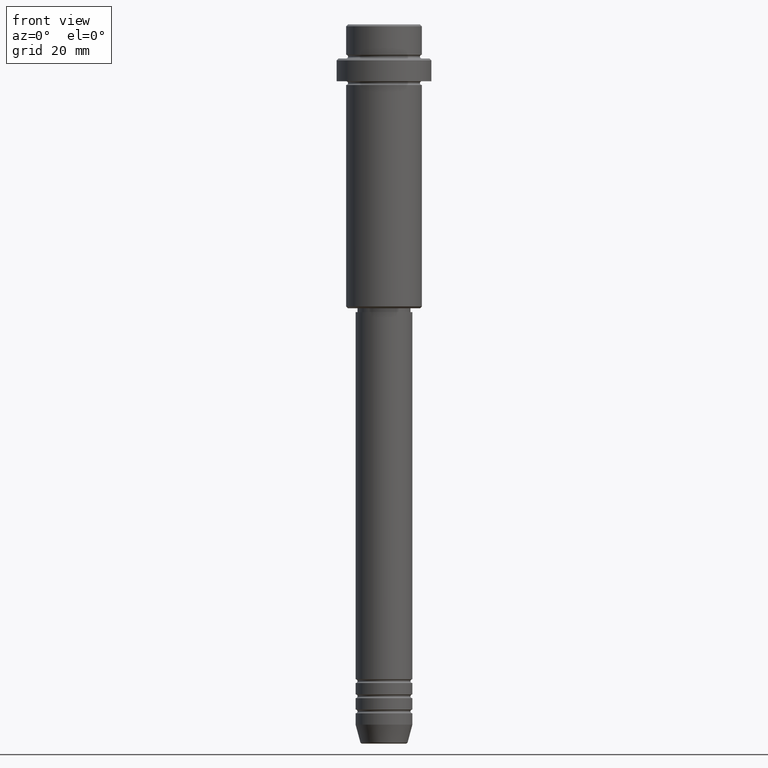
[diagram: clean part render]
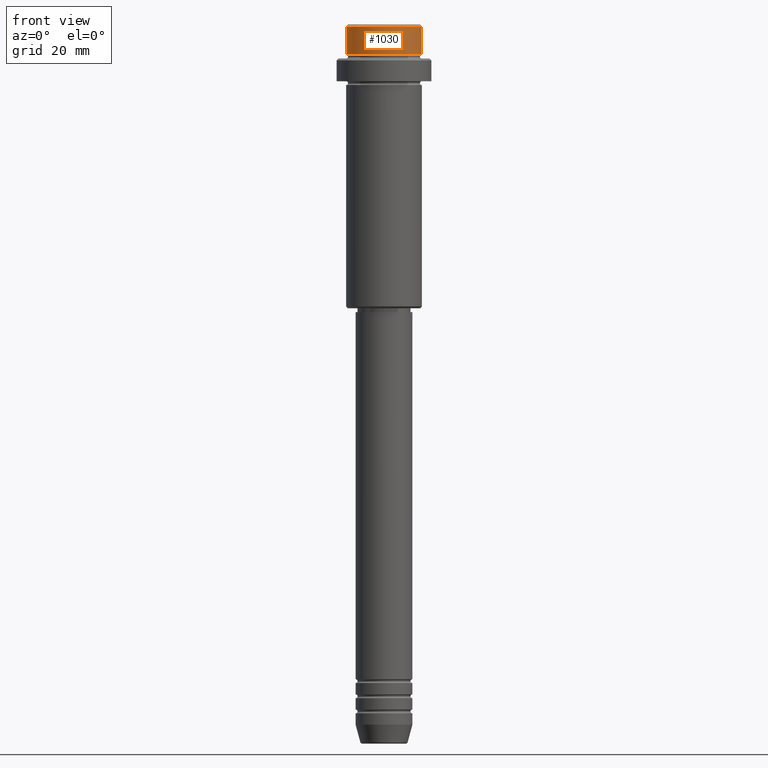
[diagram: same view with one face highlighted and labeled with its STEP entity id]
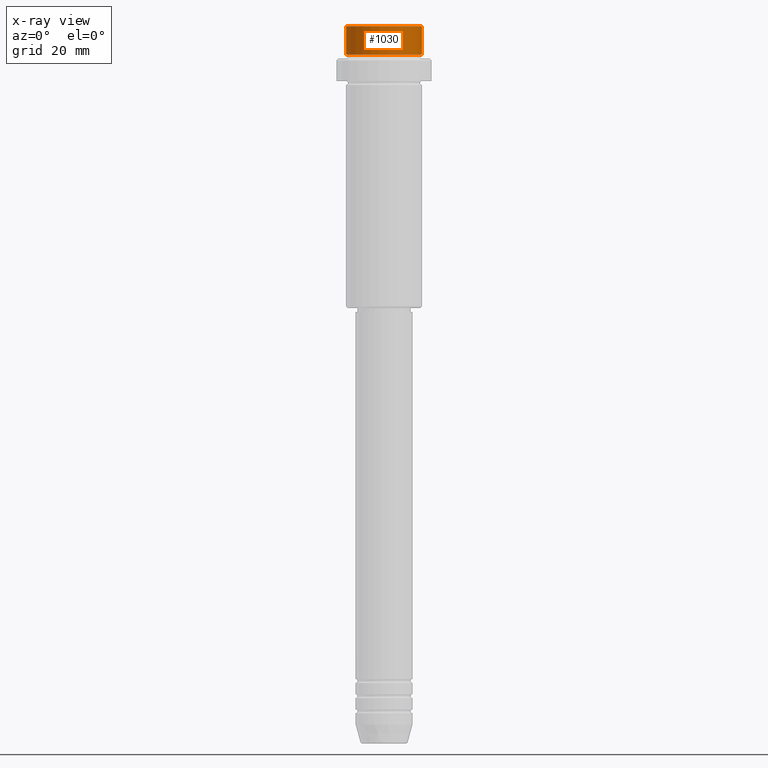
[diagram: x-ray of the same camera — body ghosted, the highlighted face saturated]
A machine part, front view. The second image highlights one B-rep face of the part: STEP entity #1030.
The next image is the same camera in x-ray: the body ghosted, the highlighted face saturated — about 0% of this face is hidden behind the body in this view.
In plain terms, the highlighted cylindrical surface (partial cylindrical patch) has radius 10 mm, axis along (-0, -0, 1).
Its self-contained STEP definition (entity closure, byte-faithful):
#69 = CARTESIAN_POINT ( 'NONE',  ( 9.999999999999998224, 0.000000000000000000, -7.999999999999998224 ) ) ;
#115 = EDGE_CURVE ( 'NONE', #394, #1069, #532, .T. ) ;
#132 = CIRCLE ( 'NONE', #1297, 9.999999999999998224 ) ;
#137 = LINE ( 'NONE', #1104, #828 ) ;
#268 = CARTESIAN_POINT ( 'NONE',  ( -9.999999999999998224, 1.224646799147353059E-15, -0.4999999999999970024 ) ) ;
#303 = AXIS2_PLACEMENT_3D ( 'NONE', #916, #1151, #806 ) ;
#338 = ORIENTED_EDGE ( 'NONE', *, *, #115, .T. ) ;
#394 = VERTEX_POINT ( 'NONE', #982 ) ;
#403 = LINE ( 'NONE', #841, #465 ) ;
#465 = VECTOR ( 'NONE', #1163, 1000.000000000000000 ) ;
#472 = EDGE_CURVE ( 'NONE', #1069, #978, #137, .T. ) ;
#532 = CIRCLE ( 'NONE', #716, 9.999999999999998224 ) ;
#591 = DIRECTION ( 'NONE',  ( 0.000000000000000000, 0.000000000000000000, -1.000000000000000000 ) ) ;
#596 = CYLINDRICAL_SURFACE ( 'NONE', #303, 9.999999999999998224 ) ;
#711 = FACE_OUTER_BOUND ( 'NONE', #733, .T. ) ;
#716 = AXIS2_PLACEMENT_3D ( 'NONE', #919, #907, #802 ) ;
#733 = EDGE_LOOP ( 'NONE', ( #1261, #338, #914, #1145 ) ) ;
#802 = DIRECTION ( 'NONE',  ( 1.000000000000000000, 0.000000000000000000, 0.000000000000000000 ) ) ;
#806 = DIRECTION ( 'NONE',  ( 1.000000000000000000, 0.000000000000000000, 0.000000000000000000 ) ) ;
#828 = VECTOR ( 'NONE', #865, 1000.000000000000000 ) ;
#841 = CARTESIAN_POINT ( 'NONE',  ( -9.999999999999998224, 1.224646799147353059E-15, 0.000000000000000000 ) ) ;
#842 = EDGE_CURVE ( 'NONE', #394, #1054, #403, .T. ) ;
#865 = DIRECTION ( 'NONE',  ( -0.000000000000000000, -0.000000000000000000, 1.000000000000000000 ) ) ;
#870 = EDGE_CURVE ( 'NONE', #978, #1054, #132, .T. ) ;
#907 = DIRECTION ( 'NONE',  ( -0.000000000000000000, -0.000000000000000000, 1.000000000000000000 ) ) ;
#914 = ORIENTED_EDGE ( 'NONE', *, *, #472, .T. ) ;
#916 = CARTESIAN_POINT ( 'NONE',  ( 0.000000000000000000, 0.000000000000000000, 0.000000000000000000 ) ) ;
#919 = CARTESIAN_POINT ( 'NONE',  ( 0.000000000000000000, 0.000000000000000000, -7.999999999999998224 ) ) ;
#978 = VERTEX_POINT ( 'NONE', #1245 ) ;
#982 = CARTESIAN_POINT ( 'NONE',  ( -9.999999999999998224, 1.224646799147353059E-15, -7.999999999999998224 ) ) ;
#1030 = ADVANCED_FACE ( 'NONE', ( #711 ), #596, .T. ) ;
#1054 = VERTEX_POINT ( 'NONE', #268 ) ;
#1069 = VERTEX_POINT ( 'NONE', #69 ) ;
#1104 = CARTESIAN_POINT ( 'NONE',  ( 9.999999999999998224, 0.000000000000000000, 0.000000000000000000 ) ) ;
#1145 = ORIENTED_EDGE ( 'NONE', *, *, #870, .T. ) ;
#1151 = DIRECTION ( 'NONE',  ( -0.000000000000000000, -0.000000000000000000, 1.000000000000000000 ) ) ;
#1163 = DIRECTION ( 'NONE',  ( -0.000000000000000000, -0.000000000000000000, 1.000000000000000000 ) ) ;
#1230 = DIRECTION ( 'NONE',  ( 1.000000000000000000, 0.000000000000000000, 0.000000000000000000 ) ) ;
#1245 = CARTESIAN_POINT ( 'NONE',  ( 9.999999999999998224, 0.000000000000000000, -0.4999999999999970024 ) ) ;
#1261 = ORIENTED_EDGE ( 'NONE', *, *, #842, .F. ) ;
#1297 = AXIS2_PLACEMENT_3D ( 'NONE', #1342, #591, #1230 ) ;
#1342 = CARTESIAN_POINT ( 'NONE',  ( 0.000000000000000000, 0.000000000000000000, -0.4999999999999970024 ) ) ;